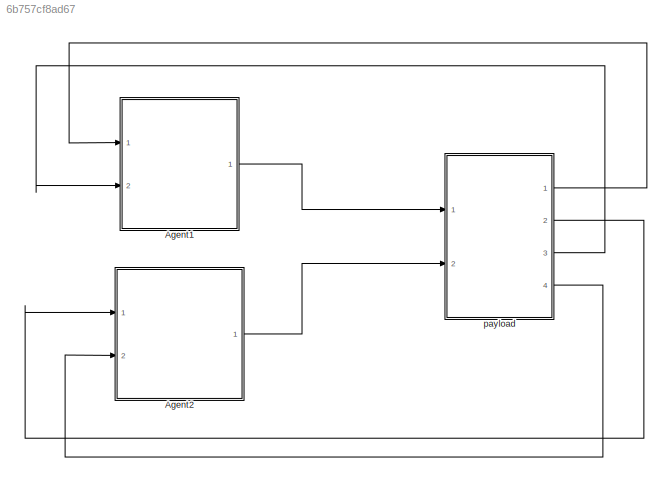
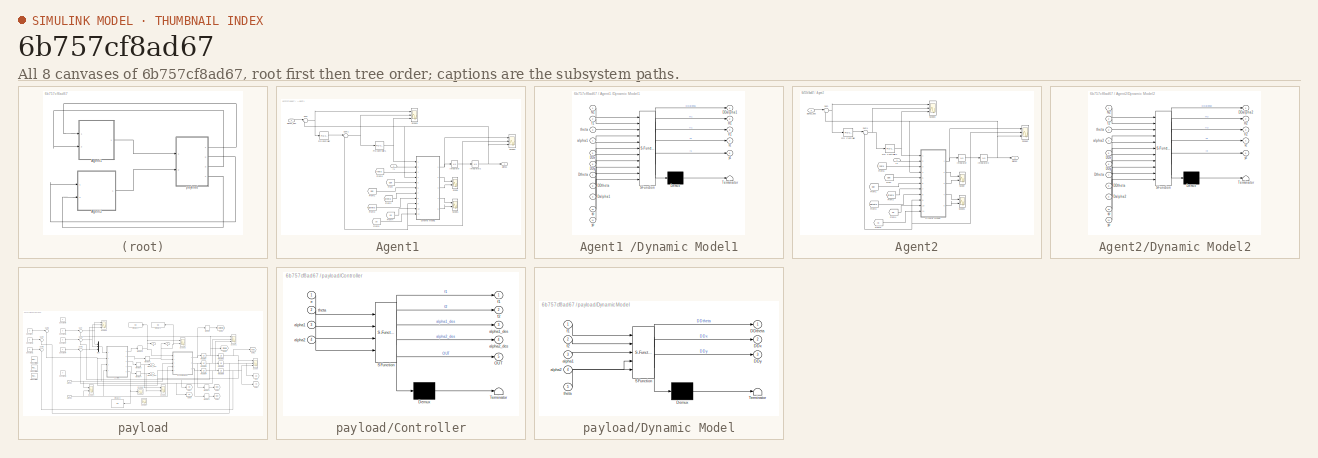
[diagram: thumbnail index - all 8 canvases of the model, root first then tree order]
MODEL slx_6b757cf8ad67
KIND model
CONFIG AbsTol = auto
CONFIG EnableMultiTasking = off
CONFIG FixedStep = auto
CONFIG InitFcn = Simple_2Quad_payload_05_const
CONFIG MaxStep = auto
CONFIG MinStep = auto
CONFIG RelTol = 1e-3
CONFIG SampleTimeConstraint = Unconstrained
CONFIG Solver = VariableStepAuto
CONFIG SolverName = VariableStepAuto
CONFIG StartTime = 0.0
CONFIG StopTime = 100
BLOCK [SubSystem] Agent1 
  Ports = [2, 1]
  RequestExecContextInheritance = off
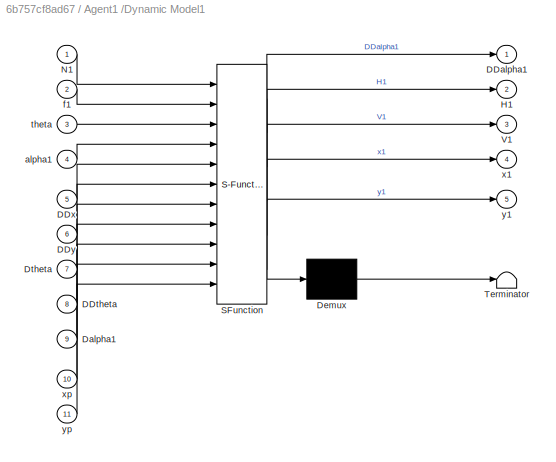
BLOCK [SubSystem] Agent1 /Dynamic Model1
  ErrorFcn = Stateflow.Translate.translate
  PermitHierarchicalResolution = ExplicitOnly
  Ports = [11, 5]
  RequestExecContextInheritance = off
  SFBlockType = MATLAB Function
  TreatAsAtomicUnit = on
BLOCK [Demux] Agent1 /Dynamic Model1/ Demux 
  Outputs = 1
  Ports = [1, 1]
BLOCK [S-Function] Agent1 /Dynamic Model1/ SFunction 
  EnableBusSupport = on
  FunctionName = sf_sfun
  Parameters = d,g,l,m
  PortCounts = [11 6]
  Ports = [11, 6]
  SFcnIsStateOwnerBlock = off
  SFunctionDeploymentMode = off
  Tag = Stateflow S-Function Simple_2Quad_payload_05 4
BLOCK [Terminator] Agent1 /Dynamic Model1/ Terminator 
BLOCK [Outport] Agent1 /Dynamic Model1/DDalpha1
  IconDisplay = Port number
BLOCK [Inport] Agent1 /Dynamic Model1/DDtheta
  IconDisplay = Port number
  Port = 8
BLOCK [Inport] Agent1 /Dynamic Model1/DDx
  IconDisplay = Port number
  Port = 5
BLOCK [Inport] Agent1 /Dynamic Model1/DDy
  IconDisplay = Port number
  Port = 6
BLOCK [Inport] Agent1 /Dynamic Model1/Dalpha1
  IconDisplay = Port number
  Port = 9
BLOCK [Inport] Agent1 /Dynamic Model1/Dtheta
  IconDisplay = Port number
  Port = 7
BLOCK [Outport] Agent1 /Dynamic Model1/H1
  IconDisplay = Port number
  Port = 2
BLOCK [Inport] Agent1 /Dynamic Model1/N1
  IconDisplay = Port number
BLOCK [Outport] Agent1 /Dynamic Model1/V1
  IconDisplay = Port number
  Port = 3
BLOCK [Inport] Agent1 /Dynamic Model1/alpha1
  IconDisplay = Port number
  Port = 4
BLOCK [Inport] Agent1 /Dynamic Model1/f1
  IconDisplay = Port number
  Port = 2
BLOCK [Inport] Agent1 /Dynamic Model1/theta
  IconDisplay = Port number
  Port = 3
BLOCK [Outport] Agent1 /Dynamic Model1/x1
  IconDisplay = Port number
  Port = 4
BLOCK [Inport] Agent1 /Dynamic Model1/xp
  IconDisplay = Port number
  Port = 10
BLOCK [Outport] Agent1 /Dynamic Model1/y1
  IconDisplay = Port number
  Port = 5
BLOCK [Inport] Agent1 /Dynamic Model1/yp
  IconDisplay = Port number
  Port = 11
BLOCK [From] Agent1 /From
  GotoTag = DDx
  TagVisibility = global
BLOCK [From] Agent1 /From1
  GotoTag = DDy
  TagVisibility = global
BLOCK [From] Agent1 /From2
  GotoTag = Dtheta
  TagVisibility = global
BLOCK [From] Agent1 /From3
  GotoTag = DDtheta
  TagVisibility = global
BLOCK [From] Agent1 /From4
  GotoTag = xp
  TagVisibility = global
BLOCK [From] Agent1 /From5
  GotoTag = yp
  TagVisibility = global
BLOCK [From] Agent1 /From6
  GotoTag = theta
  TagVisibility = global
BLOCK [Integrator] Agent1 /Integrator
  Ports = [1, 1]
BLOCK [Integrator] Agent1 /Integrator2
  InitialCondition = pi/2
  Ports = [1, 1]
BLOCK [Reference] Agent1 /PID Controller  REF=simulink/Continuous/PID Controller
  Ports = [1, 1]
  SourceBlock = simulink/Continuous/PID Controller
  SourceProductBaseCode = SL
  SourceProductName = Simulink
  SourceType = PID 1dof
BLOCK [Reference] Agent1 /PID Controller1  REF=simulink/Continuous/PID Controller
  Ports = [1, 1]
  SourceBlock = simulink/Continuous/PID Controller
  SourceProductBaseCode = SL
  SourceProductName = Simulink
  SourceType = PID 1dof
BLOCK [Scope] Agent1 /Scope
  Floating = off
  NumInputPorts = 2
  Ports = [2]
  ScopeSpecificationString = Simulink.scopes.TimeScopeBlockCfg('CurrentConfiguration', extmgr.ConfigurationSet(extmgr.Configuration('Core','General UI',true),extmgr.Configuration('Core','Source UI',true),extmgr.Configuration('Sources','WiredSimulink',true,'DataLoggingVariableName','ScopeData6'),extmgr.Configuration('Visuals','Time Domain',true,'SerializedDisplays',{struct('MinYLimReal','-202.65399','MaxYLimReal','1767.84636',...<+1981ch>
BLOCK [Scope] Agent1 /Scope1
  Floating = off
  NumInputPorts = 2
  Ports = [2]
  ScopeSpecificationString = Simulink.scopes.TimeScopeBlockCfg('CurrentConfiguration', extmgr.ConfigurationSet(extmgr.Configuration('Core','General UI',true),extmgr.Configuration('Core','Source UI',true),extmgr.Configuration('Sources','WiredSimulink',true,'DataLoggingVariableName','ScopeData7'),extmgr.Configuration('Visuals','Time Domain',true,'SerializedDisplays',{struct('MinYLimReal','-34.6482','MaxYLimReal','321.83381','YL...<+2007ch>
BLOCK [Scope] Agent1 /Scope2
  Floating = off
  NumInputPorts = 3
  Ports = [3]
  ScopeSpecificationString = Simulink.scopes.TimeScopeBlockCfg('CurrentConfiguration', extmgr.ConfigurationSet(extmgr.Configuration('Core','General UI',true),extmgr.Configuration('Core','Source UI',true),extmgr.Configuration('Sources','WiredSimulink',true,'DataLoggingVariableName','ScopeData9'),extmgr.Configuration('Visuals','Time Domain',true,'SerializedDisplays',{struct('MinYLimReal','-1.00000','MaxYLimReal','1.00000','YLab...<+2712ch>
BLOCK [Scope] Agent1 /Scope3
  Floating = off
  NumInputPorts = 3
  Ports = [3]
  ScopeSpecificationString = Simulink.scopes.TimeScopeBlockCfg('CurrentConfiguration', extmgr.ConfigurationSet(extmgr.Configuration('Core','General UI',true),extmgr.Configuration('Core','Source UI',true),extmgr.Configuration('Sources','WiredSimulink',true,'DataLoggingVariableName','ScopeData8'),extmgr.Configuration('Visuals','Time Domain',true,'SerializedDisplays',{struct('MinYLimReal','-1.76763','MaxYLimReal','0.2007','YLabe...<+2679ch>
BLOCK [Sum] Agent1 /Sum
  IconShape = round
  InputSameDT = off
  Inputs = |+-
  OutDataTypeStr = Inherit: Inherit via internal rule
  Ports = [2, 1]
  SaturateOnIntegerOverflow = off
BLOCK [Sum] Agent1 /Sum1
  IconShape = round
  InputSameDT = off
  Inputs = |+-
  OutDataTypeStr = Inherit: Inherit via internal rule
  Ports = [2, 1]
  SaturateOnIntegerOverflow = off
BLOCK [Outport] Agent1 /alpha1
  IconDisplay = Port number
BLOCK [Inport] Agent1 /alpha1_des
  IconDisplay = Port number
  Port = 2
BLOCK [Inport] Agent1 /f1
  IconDisplay = Port number
BLOCK [SubSystem] Agent2
  Ports = [2, 1]
  RequestExecContextInheritance = off
BLOCK [SubSystem] Agent2/Dynamic Model2
  ErrorFcn = Stateflow.Translate.translate
  PermitHierarchicalResolution = ExplicitOnly
  Ports = [11, 5]
  RequestExecContextInheritance = off
  SFBlockType = MATLAB Function
  TreatAsAtomicUnit = on
BLOCK [Demux] Agent2/Dynamic Model2/ Demux 
  Outputs = 1
  Ports = [1, 1]
BLOCK [S-Function] Agent2/Dynamic Model2/ SFunction 
  EnableBusSupport = on
  FunctionName = sf_sfun
  Parameters = d,g,l,m
  PortCounts = [11 6]
  Ports = [11, 6]
  SFcnIsStateOwnerBlock = off
  SFunctionDeploymentMode = off
  Tag = Stateflow S-Function Simple_2Quad_payload_05 3
BLOCK [Terminator] Agent2/Dynamic Model2/ Terminator 
BLOCK [Outport] Agent2/Dynamic Model2/DDalpha2
  IconDisplay = Port number
BLOCK [Inport] Agent2/Dynamic Model2/DDtheta
  IconDisplay = Port number
  Port = 8
BLOCK [Inport] Agent2/Dynamic Model2/DDx
  IconDisplay = Port number
  Port = 5
BLOCK [Inport] Agent2/Dynamic Model2/DDy
  IconDisplay = Port number
  Port = 6
BLOCK [Inport] Agent2/Dynamic Model2/Dalpha2
  IconDisplay = Port number
  Port = 9
BLOCK [Inport] Agent2/Dynamic Model2/Dtheta
  IconDisplay = Port number
  Port = 7
BLOCK [Outport] Agent2/Dynamic Model2/H2
  IconDisplay = Port number
  Port = 2
BLOCK [Inport] Agent2/Dynamic Model2/N2
  IconDisplay = Port number
BLOCK [Outport] Agent2/Dynamic Model2/V2
  IconDisplay = Port number
  Port = 3
BLOCK [Inport] Agent2/Dynamic Model2/alpha2
  IconDisplay = Port number
  Port = 4
BLOCK [Inport] Agent2/Dynamic Model2/f2
  IconDisplay = Port number
  Port = 2
BLOCK [Inport] Agent2/Dynamic Model2/theta
  IconDisplay = Port number
  Port = 3
BLOCK [Outport] Agent2/Dynamic Model2/x2
  IconDisplay = Port number
  Port = 4
BLOCK [Inport] Agent2/Dynamic Model2/xp
  IconDisplay = Port number
  Port = 10
BLOCK [Outport] Agent2/Dynamic Model2/y2
  IconDisplay = Port number
  Port = 5
BLOCK [Inport] Agent2/Dynamic Model2/yp
  IconDisplay = Port number
  Port = 11
BLOCK [From] Agent2/From
  GotoTag = DDx
  TagVisibility = global
BLOCK [From] Agent2/From1
  GotoTag = DDy
  TagVisibility = global
BLOCK [From] Agent2/From2
  GotoTag = Dtheta
  TagVisibility = global
BLOCK [From] Agent2/From3
  GotoTag = DDtheta
  TagVisibility = global
BLOCK [From] Agent2/From4
  GotoTag = xp
  TagVisibility = global
BLOCK [From] Agent2/From5
  GotoTag = yp
  TagVisibility = global
BLOCK [From] Agent2/From6
  GotoTag = theta
  TagVisibility = global
BLOCK [Integrator] Agent2/Integrator
  Ports = [1, 1]
BLOCK [Integrator] Agent2/Integrator2
  InitialCondition = pi/2
  Ports = [1, 1]
BLOCK [Reference] Agent2/PID Controller  REF=simulink/Continuous/PID Controller
  Ports = [1, 1]
  SourceBlock = simulink/Continuous/PID Controller
  SourceProductBaseCode = SL
  SourceProductName = Simulink
  SourceType = PID 1dof
BLOCK [Reference] Agent2/PID Controller1  REF=simulink/Continuous/PID Controller
  Ports = [1, 1]
  SourceBlock = simulink/Continuous/PID Controller
  SourceProductBaseCode = SL
  SourceProductName = Simulink
  SourceType = PID 1dof
BLOCK [Scope] Agent2/Scope
  Floating = off
  NumInputPorts = 2
  Ports = [2]
  ScopeSpecificationString = Simulink.scopes.TimeScopeBlockCfg('CurrentConfiguration', extmgr.ConfigurationSet(extmgr.Configuration('Core','General UI',true),extmgr.Configuration('Core','Source UI',true),extmgr.Configuration('Sources','WiredSimulink',true,'DataLoggingVariableName','ScopeData6'),extmgr.Configuration('Visuals','Time Domain',true,'SerializedDisplays',{struct('MinYLimReal','-10','MaxYLimReal','10','YLabelReal',''...<+2092ch>
BLOCK [Scope] Agent2/Scope1
  Floating = off
  NumInputPorts = 2
  Ports = [2]
  ScopeSpecificationString = Simulink.scopes.TimeScopeBlockCfg('CurrentConfiguration', extmgr.ConfigurationSet(extmgr.Configuration('Core','General UI',true),extmgr.Configuration('Core','Source UI',true),extmgr.Configuration('Sources','WiredSimulink',true,'DataLoggingVariableName','ScopeData7'),extmgr.Configuration('Visuals','Time Domain',true,'SerializedDisplays',{struct('MinYLimReal','-36.6482','MaxYLimReal','319.83381','YL...<+1978ch>
BLOCK [Scope] Agent2/Scope2
  Floating = off
  NumInputPorts = 3
  Ports = [3]
  ScopeSpecificationString = Simulink.scopes.TimeScopeBlockCfg('CurrentConfiguration', extmgr.ConfigurationSet(extmgr.Configuration('Core','General UI',true),extmgr.Configuration('Core','Source UI',true),extmgr.Configuration('Sources','WiredSimulink',true,'DataLoggingVariableName','ScopeData10'),extmgr.Configuration('Visuals','Time Domain',true,'SerializedDisplays',{struct('MinYLimReal','-1767.89482','MaxYLimReal','203.09007'...<+2706ch>
BLOCK [Scope] Agent2/Scope3
  Floating = off
  NumInputPorts = 3
  Ports = [3]
  ScopeSpecificationString = Simulink.scopes.TimeScopeBlockCfg('CurrentConfiguration', extmgr.ConfigurationSet(extmgr.Configuration('Core','General UI',true),extmgr.Configuration('Core','Source UI',true),extmgr.Configuration('Sources','WiredSimulink',true,'DataLoggingVariableName','ScopeData11'),extmgr.Configuration('Visuals','Time Domain',true,'SerializedDisplays',{struct('MinYLimReal','-1.76763','MaxYLimReal','0.2007','YLab...<+2680ch>
BLOCK [Sum] Agent2/Sum
  IconShape = round
  InputSameDT = off
  Inputs = |+-
  OutDataTypeStr = Inherit: Inherit via internal rule
  Ports = [2, 1]
  SaturateOnIntegerOverflow = off
BLOCK [Sum] Agent2/Sum1
  IconShape = round
  InputSameDT = off
  Inputs = |+-
  OutDataTypeStr = Inherit: Inherit via internal rule
  Ports = [2, 1]
  SaturateOnIntegerOverflow = off
BLOCK [Outport] Agent2/alpha2
  IconDisplay = Port number
BLOCK [Inport] Agent2/alpha2_des
  IconDisplay = Port number
  Port = 2
BLOCK [Inport] Agent2/f2
  IconDisplay = Port number
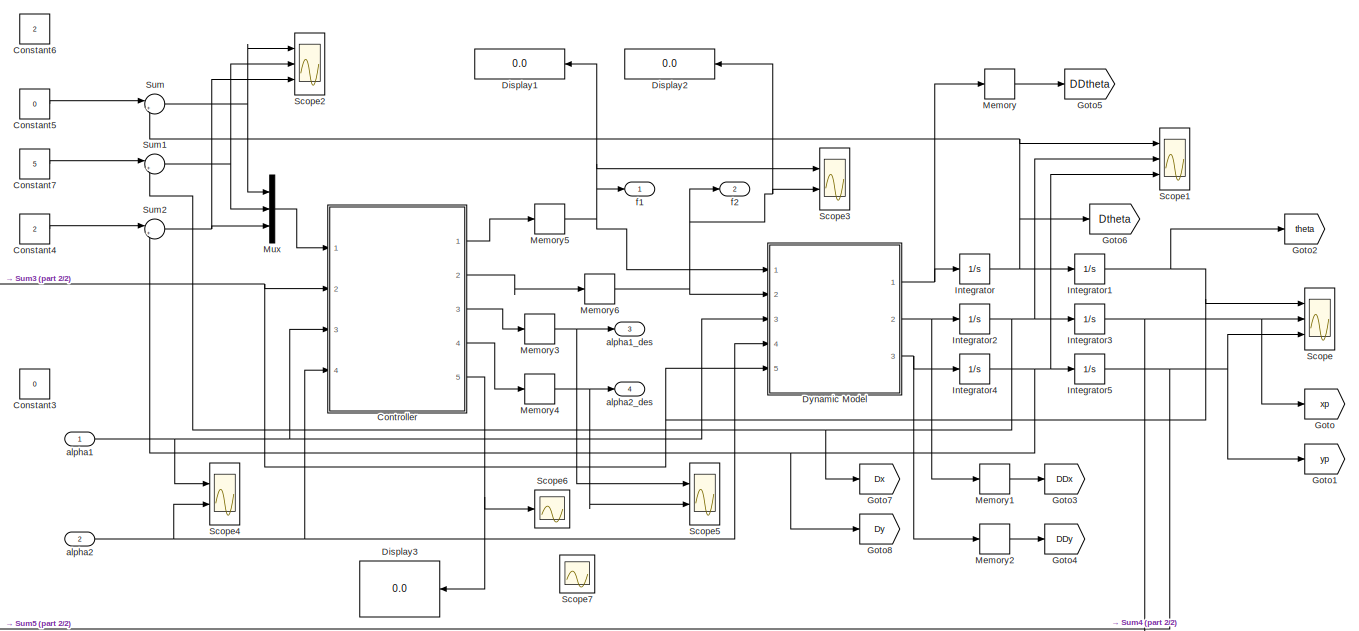
[diagram: payload - part 1/2, most of the canvas]
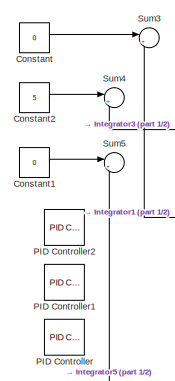
[diagram: payload - part 2/2, middle left region]
BLOCK [SubSystem] payload
  Ports = [2, 4]
  RequestExecContextInheritance = off
BLOCK [Constant] payload/Constant
  Value = 0
BLOCK [Constant] payload/Constant1
  Value = 0
BLOCK [Constant] payload/Constant2
  Value = 5
BLOCK [Constant] payload/Constant3
  Value = 0
BLOCK [Constant] payload/Constant4
  Value = 2
BLOCK [Constant] payload/Constant5
  Value = 0
BLOCK [Constant] payload/Constant6
  Value = 2
BLOCK [Constant] payload/Constant7
  Value = 5
BLOCK [SubSystem] payload/Controller
  ErrorFcn = Stateflow.Translate.translate
  PermitHierarchicalResolution = ExplicitOnly
  Ports = [4, 5]
  RequestExecContextInheritance = off
  SFBlockType = MATLAB Function
  TreatAsAtomicUnit = on
BLOCK [Demux] payload/Controller/ Demux 
  Outputs = 1
  Ports = [1, 1]
BLOCK [S-Function] payload/Controller/ SFunction 
  EnableBusSupport = on
  FunctionName = sf_sfun
  Parameters = I,M,Md,d,g
  PortCounts = [4 6]
  Ports = [4, 6]
  SFcnIsStateOwnerBlock = off
  SFunctionDeploymentMode = off
  Tag = Stateflow S-Function Simple_2Quad_payload_05 1
BLOCK [Terminator] payload/Controller/ Terminator 
BLOCK [Outport] payload/Controller/OUT
  IconDisplay = Port number
  Port = 5
BLOCK [Inport] payload/Controller/alpha1
  IconDisplay = Port number
  Port = 3
BLOCK [Outport] payload/Controller/alpha1_des
  IconDisplay = Port number
  Port = 3
BLOCK [Inport] payload/Controller/alpha2
  IconDisplay = Port number
  Port = 4
BLOCK [Outport] payload/Controller/alpha2_des
  IconDisplay = Port number
  Port = 4
BLOCK [Inport] payload/Controller/e
  IconDisplay = Port number
BLOCK [Outport] payload/Controller/f1
  IconDisplay = Port number
BLOCK [Outport] payload/Controller/f2
  IconDisplay = Port number
  Port = 2
BLOCK [Inport] payload/Controller/theta
  IconDisplay = Port number
  Port = 2
BLOCK [Display] payload/Display1
  Decimation = 1
  Ports = [1]
BLOCK [Display] payload/Display2
  Decimation = 1
  Ports = [1]
BLOCK [Display] payload/Display3
  Decimation = 1
  Ports = [1]
BLOCK [SubSystem] payload/Dynamic Model
  ErrorFcn = Stateflow.Translate.translate
  PermitHierarchicalResolution = ExplicitOnly
  Ports = [5, 3]
  RequestExecContextInheritance = off
  SFBlockType = MATLAB Function
  TreatAsAtomicUnit = on
BLOCK [Demux] payload/Dynamic Model/ Demux 
  Outputs = 1
  Ports = [1, 1]
BLOCK [S-Function] payload/Dynamic Model/ SFunction 
  EnableBusSupport = on
  FunctionName = sf_sfun
  Parameters = I,M,d,g
  PortCounts = [5 4]
  Ports = [5, 4]
  SFcnIsStateOwnerBlock = off
  SFunctionDeploymentMode = off
  Tag = Stateflow S-Function Simple_2Quad_payload_05 2
BLOCK [Terminator] payload/Dynamic Model/ Terminator 
BLOCK [Outport] payload/Dynamic Model/DDtheta
  IconDisplay = Port number
BLOCK [Outport] payload/Dynamic Model/DDx
  IconDisplay = Port number
  Port = 2
BLOCK [Outport] payload/Dynamic Model/DDy
  IconDisplay = Port number
  Port = 3
BLOCK [Inport] payload/Dynamic Model/alpha1
  IconDisplay = Port number
  Port = 3
BLOCK [Inport] payload/Dynamic Model/alpha2
  IconDisplay = Port number
  Port = 4
BLOCK [Inport] payload/Dynamic Model/f1
  IconDisplay = Port number
BLOCK [Inport] payload/Dynamic Model/f2
  IconDisplay = Port number
  Port = 2
BLOCK [Inport] payload/Dynamic Model/theta
  IconDisplay = Port number
  Port = 5
BLOCK [Goto] payload/Goto
  GotoTag = xp
  TagVisibility = global
BLOCK [Goto] payload/Goto1
  GotoTag = yp
  TagVisibility = global
BLOCK [Goto] payload/Goto2
  GotoTag = theta
  TagVisibility = global
BLOCK [Goto] payload/Goto3
  GotoTag = DDx
  TagVisibility = global
BLOCK [Goto] payload/Goto4
  GotoTag = DDy
  TagVisibility = global
BLOCK [Goto] payload/Goto5
  GotoTag = DDtheta
  TagVisibility = global
BLOCK [Goto] payload/Goto6
  GotoTag = Dtheta
  TagVisibility = global
BLOCK [Goto] payload/Goto7
  GotoTag = Dx
  TagVisibility = global
BLOCK [Goto] payload/Goto8
  GotoTag = Dy
  TagVisibility = global
BLOCK [Integrator] payload/Integrator
  Ports = [1, 1]
BLOCK [Integrator] payload/Integrator1
  Ports = [1, 1]
BLOCK [Integrator] payload/Integrator2
  Ports = [1, 1]
BLOCK [Integrator] payload/Integrator3
  Ports = [1, 1]
BLOCK [Integrator] payload/Integrator4
  Ports = [1, 1]
BLOCK [Integrator] payload/Integrator5
  Ports = [1, 1]
BLOCK [Memory] payload/Memory
BLOCK [Memory] payload/Memory1
BLOCK [Memory] payload/Memory2
BLOCK [Memory] payload/Memory3
BLOCK [Memory] payload/Memory4
BLOCK [Memory] payload/Memory5
BLOCK [Memory] payload/Memory6
BLOCK [Mux] payload/Mux
  DisplayOption = bar
  Inputs = 3
  Ports = [3, 1]
BLOCK [Reference] payload/PID Controller  REF=simulink/Continuous/PID Controller
  Ports = [1, 1]
  SourceBlock = simulink/Continuous/PID Controller
  SourceProductBaseCode = SL
  SourceProductName = Simulink
  SourceType = PID 1dof
BLOCK [Reference] payload/PID Controller1  REF=simulink/Continuous/PID Controller
  Ports = [1, 1]
  SourceBlock = simulink/Continuous/PID Controller
  SourceProductBaseCode = SL
  SourceProductName = Simulink
  SourceType = PID 1dof
BLOCK [Reference] payload/PID Controller2  REF=simulink/Continuous/PID Controller
  Ports = [1, 1]
  SourceBlock = simulink/Continuous/PID Controller
  SourceProductBaseCode = SL
  SourceProductName = Simulink
  SourceType = PID 1dof
BLOCK [Scope] payload/Scope
  Floating = off
  NumInputPorts = 3
  Ports = [3]
  ScopeSpecificationString = Simulink.scopes.TimeScopeBlockCfg('CurrentConfiguration', extmgr.ConfigurationSet(extmgr.Configuration('Core','General UI',true),extmgr.Configuration('Core','Source UI',true),extmgr.Configuration('Sources','WiredSimulink',true),extmgr.Configuration('Visuals','Time Domain',true,'SerializedDisplays',{struct('MinYLimReal','-1.00000','MaxYLimReal','1.00000','YLabelReal','','MinYLimMag','0.00000','MaxY...<+2675ch>
BLOCK [Scope] payload/Scope1
  Floating = off
  NumInputPorts = 3
  Ports = [3]
  ScopeSpecificationString = Simulink.scopes.TimeScopeBlockCfg('CurrentConfiguration', extmgr.ConfigurationSet(extmgr.Configuration('Core','General UI',true),extmgr.Configuration('Core','Source UI',true),extmgr.Configuration('Sources','WiredSimulink',true,'DataLoggingVariableName','ScopeData1'),extmgr.Configuration('Visuals','Time Domain',true,'SerializedDisplays',{struct('MinYLimReal','-1.00000','MaxYLimReal','1.00000','YLab...<+2753ch>
BLOCK [Scope] payload/Scope2
  Floating = off
  NumInputPorts = 3
  Ports = [3]
  ScopeSpecificationString = Simulink.scopes.TimeScopeBlockCfg('CurrentConfiguration', extmgr.ConfigurationSet(extmgr.Configuration('Core','General UI',true),extmgr.Configuration('Core','Source UI',true),extmgr.Configuration('Sources','WiredSimulink',true,'DataLoggingVariableName','ScopeData2'),extmgr.Configuration('Visuals','Time Domain',true,'SerializedDisplays',{struct('MinYLimReal','-1.00000','MaxYLimReal','1.00000','YLab...<+2743ch>
BLOCK [Scope] payload/Scope3
  Floating = off
  NumInputPorts = 2
  Ports = [2]
  ScopeSpecificationString = Simulink.scopes.TimeScopeBlockCfg('CurrentConfiguration', extmgr.ConfigurationSet(extmgr.Configuration('Core','General UI',true),extmgr.Configuration('Core','Source UI',true),extmgr.Configuration('Sources','WiredSimulink',true,'DataLoggingVariableName','ScopeData3'),extmgr.Configuration('Visuals','Time Domain',true,'SerializedDisplays',{struct('MinYLimReal','-0.72708','MaxYLimReal','6.54376','YLab...<+2023ch>
BLOCK [Scope] payload/Scope4
  Floating = off
  NumInputPorts = 2
  Ports = [2]
  ScopeSpecificationString = Simulink.scopes.TimeScopeBlockCfg('CurrentConfiguration', extmgr.ConfigurationSet(extmgr.Configuration('Core','General UI',true),extmgr.Configuration('Core','Source UI',true),extmgr.Configuration('Sources','WiredSimulink',true,'DataLoggingVariableName','ScopeData4'),extmgr.Configuration('Visuals','Time Domain',true,'SerializedDisplays',{struct('MinYLimReal','0.57181','MaxYLimReal','1.6818','YLabel...<+1945ch>
BLOCK [Scope] payload/Scope5
  Floating = off
  NumInputPorts = 2
  Ports = [2]
  ScopeSpecificationString = Simulink.scopes.TimeScopeBlockCfg('CurrentConfiguration', extmgr.ConfigurationSet(extmgr.Configuration('Core','General UI',true),extmgr.Configuration('Core','Source UI',true),extmgr.Configuration('Sources','WiredSimulink',true,'DataLoggingVariableName','ScopeData5'),extmgr.Configuration('Visuals','Time Domain',true,'SerializedDisplays',{struct('MinYLimReal','-1.00000','MaxYLimReal','1.00000','YLab...<+2023ch>
BLOCK [Scope] payload/Scope6
  Floating = off
  NumInputPorts = 1
  Ports = [1]
  ScopeSpecificationString = Simulink.scopes.TimeScopeBlockCfg('CurrentConfiguration', extmgr.ConfigurationSet(extmgr.Configuration('Core','General UI',true),extmgr.Configuration('Core','Source UI',true),extmgr.Configuration('Sources','WiredSimulink',true,'DataLoggingVariableName','ScopeData12'),extmgr.Configuration('Visuals','Time Domain',true,'SerializedDisplays',{struct('MinYLimReal','-1.7059','MaxYLimReal','12.17992','YLa...<+1491ch>
BLOCK [Scope] payload/Scope7
  Floating = off
  NumInputPorts = 1
  Ports = [1]
  ScopeSpecificationString = Simulink.scopes.TimeScopeBlockCfg('CurrentConfiguration', extmgr.ConfigurationSet(extmgr.Configuration('Core','General UI',true),extmgr.Configuration('Core','Source UI',true),extmgr.Configuration('Sources','WiredSimulink',true,'DataLoggingVariableName','ScopeData1'),extmgr.Configuration('Visuals','Time Domain',true,'SerializedDisplays',{struct('MinYLimReal','0.64382','MaxYLimReal','4.2056','YLabel...<+1487ch>
BLOCK [Sum] payload/Sum
  IconShape = round
  InputSameDT = off
  Inputs = |+-
  OutDataTypeStr = Inherit: Inherit via internal rule
  Ports = [2, 1]
  SaturateOnIntegerOverflow = off
BLOCK [Sum] payload/Sum1
  IconShape = round
  InputSameDT = off
  Inputs = |+-
  OutDataTypeStr = Inherit: Inherit via internal rule
  Ports = [2, 1]
  SaturateOnIntegerOverflow = off
BLOCK [Sum] payload/Sum2
  IconShape = round
  InputSameDT = off
  Inputs = |+-
  OutDataTypeStr = Inherit: Inherit via internal rule
  Ports = [2, 1]
  SaturateOnIntegerOverflow = off
BLOCK [Sum] payload/Sum3
  IconShape = round
  InputSameDT = off
  Inputs = |+-
  OutDataTypeStr = Inherit: Inherit via internal rule
  Ports = [2, 1]
  SaturateOnIntegerOverflow = off
BLOCK [Sum] payload/Sum4
  IconShape = round
  InputSameDT = off
  Inputs = |+-
  OutDataTypeStr = Inherit: Inherit via internal rule
  Ports = [2, 1]
  SaturateOnIntegerOverflow = off
BLOCK [Sum] payload/Sum5
  IconShape = round
  InputSameDT = off
  Inputs = |+-
  OutDataTypeStr = Inherit: Inherit via internal rule
  Ports = [2, 1]
  SaturateOnIntegerOverflow = off
BLOCK [Inport] payload/alpha1
  IconDisplay = Port number
BLOCK [Outport] payload/alpha1_des
  IconDisplay = Port number
  Port = 3
BLOCK [Inport] payload/alpha2
  IconDisplay = Port number
  Port = 2
BLOCK [Outport] payload/alpha2_des
  IconDisplay = Port number
  Port = 4
BLOCK [Outport] payload/f1
  IconDisplay = Port number
BLOCK [Outport] payload/f2
  IconDisplay = Port number
  Port = 2
NET Agent1 /Dynamic Model1:1 -> Agent1 /Integrator:1, Agent1 /Scope2:1
LINE Agent1 /Dynamic Model1:2 -> Agent1 /Scope:1
LINE Agent1 /Dynamic Model1:3 -> Agent1 /Scope:2
LINE Agent1 /Dynamic Model1:4 -> Agent1 /Scope1:1
LINE Agent1 /Dynamic Model1:5 -> Agent1 /Scope1:2
LINE Agent1 /From1:1 -> Agent1 /Dynamic Model1:6
LINE Agent1 /From2:1 -> Agent1 /Dynamic Model1:7
LINE Agent1 /From3:1 -> Agent1 /Dynamic Model1:8
LINE Agent1 /From4:1 -> Agent1 /Dynamic Model1:10
LINE Agent1 /From5:1 -> Agent1 /Dynamic Model1:11
LINE Agent1 /From6:1 -> Agent1 /Dynamic Model1:3
LINE Agent1 /From:1 -> Agent1 /Dynamic Model1:5
NET Agent1 /Integrator2:1 -> Agent1 /Dynamic Model1:4, Agent1 /Scope2:3, Agent1 /Sum:2, Agent1 /alpha1:1
NET Agent1 /Integrator:1 -> Agent1 /Dynamic Model1:9, Agent1 /Integrator2:1, Agent1 /Scope2:2, Agent1 /Sum1:2
NET Agent1 /PID Controller1:1 -> Agent1 /Dynamic Model1:1, Agent1 /Scope3:3
LINE Agent1 /PID Controller:1 -> Agent1 /Sum1:1
NET Agent1 /Sum1:1 -> Agent1 /PID Controller1:1, Agent1 /Scope3:2
NET Agent1 /Sum:1 -> Agent1 /PID Controller:1, Agent1 /Scope3:1
LINE Agent1 /alpha1_des:1 -> Agent1 /Sum:1
LINE Agent1 /f1:1 -> Agent1 /Dynamic Model1:2
LINE Agent1 :1 -> payload:1
NET Agent2/Dynamic Model2:1 -> Agent2/Integrator:1, Agent2/Scope2:1
LINE Agent2/Dynamic Model2:2 -> Agent2/Scope:1
LINE Agent2/Dynamic Model2:3 -> Agent2/Scope:2
LINE Agent2/Dynamic Model2:4 -> Agent2/Scope1:1
LINE Agent2/Dynamic Model2:5 -> Agent2/Scope1:2
LINE Agent2/From1:1 -> Agent2/Dynamic Model2:6
LINE Agent2/From2:1 -> Agent2/Dynamic Model2:7
LINE Agent2/From3:1 -> Agent2/Dynamic Model2:8
LINE Agent2/From4:1 -> Agent2/Dynamic Model2:10
LINE Agent2/From5:1 -> Agent2/Dynamic Model2:11
LINE Agent2/From6:1 -> Agent2/Dynamic Model2:3
LINE Agent2/From:1 -> Agent2/Dynamic Model2:5
NET Agent2/Integrator2:1 -> Agent2/Dynamic Model2:4, Agent2/Scope2:3, Agent2/Sum:2, Agent2/alpha2:1
NET Agent2/Integrator:1 -> Agent2/Dynamic Model2:9, Agent2/Integrator2:1, Agent2/Scope2:2, Agent2/Sum1:2
NET Agent2/PID Controller1:1 -> Agent2/Dynamic Model2:1, Agent2/Scope3:3
LINE Agent2/PID Controller:1 -> Agent2/Sum1:1
NET Agent2/Sum1:1 -> Agent2/PID Controller1:1, Agent2/Scope3:2
NET Agent2/Sum:1 -> Agent2/PID Controller:1, Agent2/Scope3:1
LINE Agent2/alpha2_des:1 -> Agent2/Sum:1
LINE Agent2/f2:1 -> Agent2/Dynamic Model2:2
LINE Agent2:1 -> payload:2
LINE payload/Constant1:1 -> payload/Sum5:1
LINE payload/Constant2:1 -> payload/Sum4:1
LINE payload/Constant4:1 -> payload/Sum2:1
LINE payload/Constant5:1 -> payload/Sum:1
LINE payload/Constant7:1 -> payload/Sum1:1
LINE payload/Constant:1 -> payload/Sum3:1
LINE payload/Controller:1 -> payload/Memory5:1
LINE payload/Controller:2 -> payload/Memory6:1
LINE payload/Controller:3 -> payload/Memory3:1
LINE payload/Controller:4 -> payload/Memory4:1
NET payload/Controller:5 -> payload/Display3:1, payload/Scope6:1
NET payload/Dynamic Model:1 -> payload/Integrator:1, payload/Memory:1
NET payload/Dynamic Model:2 -> payload/Integrator2:1, payload/Memory1:1
NET payload/Dynamic Model:3 -> payload/Integrator4:1, payload/Memory2:1
NET payload/Integrator1:1 -> payload/Controller:2, payload/Dynamic Model:5, payload/Goto2:1, payload/Scope:1, payload/Sum3:2
NET payload/Integrator2:1 -> payload/Goto7:1, payload/Integrator3:1, payload/Scope1:2, payload/Sum1:2
NET payload/Integrator3:1 -> payload/Goto:1, payload/Scope:2, payload/Sum4:2
NET payload/Integrator4:1 -> payload/Goto8:1, payload/Integrator5:1, payload/Scope1:3, payload/Sum2:2
NET payload/Integrator5:1 -> payload/Goto1:1, payload/Scope:3, payload/Sum5:2
NET payload/Integrator:1 -> payload/Goto6:1, payload/Integrator1:1, payload/Scope1:1, payload/Sum:2
LINE payload/Memory1:1 -> payload/Goto3:1
LINE payload/Memory2:1 -> payload/Goto4:1
NET payload/Memory3:1 -> payload/Scope5:1, payload/alpha1_des:1
NET payload/Memory4:1 -> payload/Scope5:2, payload/alpha2_des:1
NET payload/Memory5:1 -> payload/Display1:1, payload/Dynamic Model:1, payload/Scope3:1, payload/f1:1
NET payload/Memory6:1 -> payload/Display2:1, payload/Dynamic Model:2, payload/Scope3:2, payload/f2:1
LINE payload/Memory:1 -> payload/Goto5:1
LINE payload/Mux:1 -> payload/Controller:1
NET payload/Sum1:1 -> payload/Mux:2, payload/Scope2:2
NET payload/Sum2:1 -> payload/Mux:3, payload/Scope2:3
NET payload/Sum:1 -> payload/Mux:1, payload/Scope2:1
NET payload/alpha1:1 -> payload/Controller:3, payload/Dynamic Model:3, payload/Scope4:1
NET payload/alpha2:1 -> payload/Controller:4, payload/Dynamic Model:4, payload/Scope4:2
LINE payload:1 -> Agent1 :1
LINE payload:2 -> Agent2:1
LINE payload:3 -> Agent1 :2
LINE payload:4 -> Agent2:2
note: NET lines group one-source signal fan-out (src -> all destinations, sorted); 1:1 wires keep LINE
CHART payload/Controller states=1 transitions=1
  STATE_LABEL 'eML_blk_kernel()'
  STATE_LABEL 'SCRIPT:\nfunction [f1,f2,alpha1_des,alpha2_des,OUT] = fcn(e,theta,alpha1,alpha2, Md, g, M, d, I)\n\nA = [(d/I) 0 0;\n    0 (1/M)*cos(theta) (-1/M)*sin(theta);\n    0 (1/M)*sin(theta) (1/M)*cos(theta)];\n\nB = [sin(alpha1) -sin(alpha2);\n    cos(alpha1) cos(alpha2);\n    sin(alpha1) sin(alpha2)];\n\nD = [0;0;-g];\n\n%SGN = diag(sign(e));\nSGN = zeros(3);\nfor i=1:3\n    SGN(i,i) = e(i)/(abs(e(i))+0.1);\nend\n\nZ = SG...<+671ch>'
CHART payload/Dynamic Model states=1 transitions=1
  STATE_LABEL 'eML_blk_kernel()'
  STATE_LABEL 'SCRIPT:\nfunction [DDtheta,DDx,DDy] = fcn(f1,f2,alpha1,alpha2,theta,d, M, I, g)\n\nDDtheta = (d/I) * ( f1*sin(alpha1) - f2*sin(alpha2) );\nDDx = (1/M) * ( f1*cos(alpha1+theta) + f2*cos(alpha2+theta) );\nDDy = (1/M) * ( f1*sin(alpha1+theta) + f2*sin(alpha2+theta) - (M*g) );\n\nend\n'
CHART Agent2/Dynamic Model2 states=1 transitions=1
  STATE_LABEL 'eML_blk_kernel()'
  STATE_LABEL 'SCRIPT:\nfunction [DDalpha2,H2,V2,x2,y2]  = fcn(N2,f2,theta,alpha2,m, g,DDx,DDy,Dtheta,DDtheta,Dalpha2, l, d,xp,yp)\n\nDDalpha2 = (1/m/l) * ( N2 - (m*g*cos(alpha2)) + (DDx*sin(theta+alpha2)) - (DDy*cos(theta+alpha2)) - ((Dtheta^2)*d*sin(alpha2)) - (DDtheta*d*cos(alpha2)) );\nT2 = f2 + (m*g*sin(alpha2)) + (m * ( (DDx*cos(theta+alpha2)) + (DDy*sin(theta+alpha2)) - ((Dtheta)^2)*d*cos(alpha2) + (DDtheta*d...<+244ch>'
CHART Agent1
/Dynamic Model1 states=1 transitions=1
  STATE_LABEL 'eML_blk_kernel()'
  STATE_LABEL 'SCRIPT:\nfunction [DDalpha1,H1,V1,x1,y1]  = fcn(N1,f1,theta,alpha1,m, g,DDx,DDy,Dtheta,DDtheta,Dalpha1, l, d,xp,yp)\n\nDDalpha1 = (1/m/l) * ( N1 - (m*g*cos(alpha1)) + (DDx*sin(theta+alpha1)) - (DDy*cos(theta+alpha1)) - ((Dtheta^2)*d*sin(alpha1)) - (DDtheta*d*cos(alpha1)) );\nT1 = f1 + (m*g*sin(alpha1)) + (m * ( (DDx*cos(theta+alpha1)) + (DDy*sin(theta+alpha1)) - ((Dtheta)^2)*d*cos(alpha1) + (DDtheta*d...<+244ch>'
